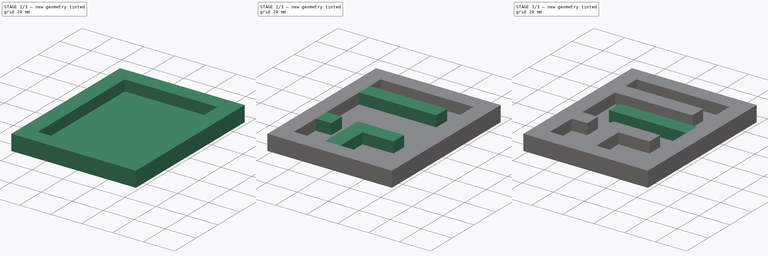
[diagram: build sequence overview — one tinted view per stage of 3, left to right]
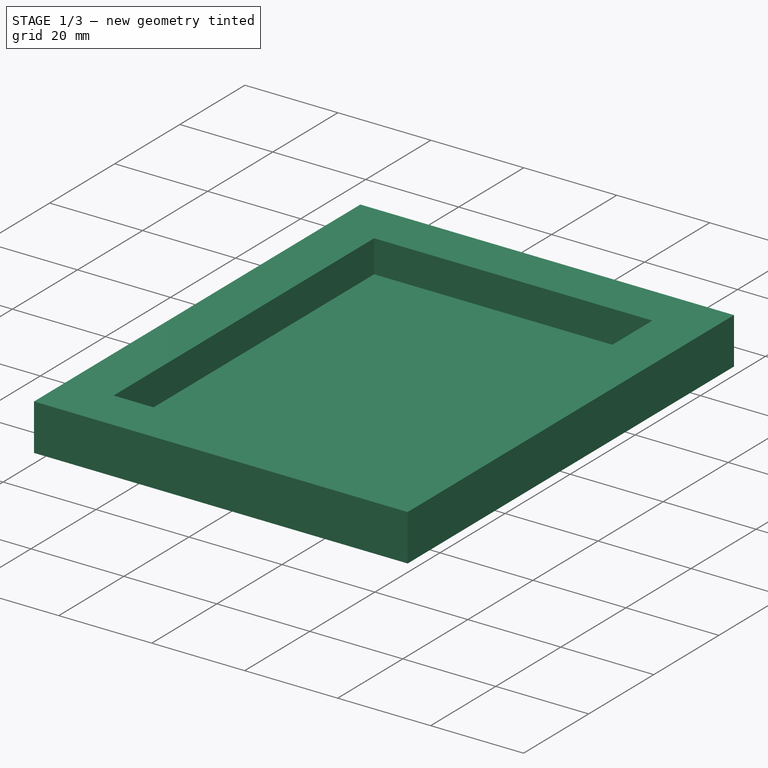
[diagram: stage 1 of 3 — iso view after this stage's code; geometry added in this stage tinted green]
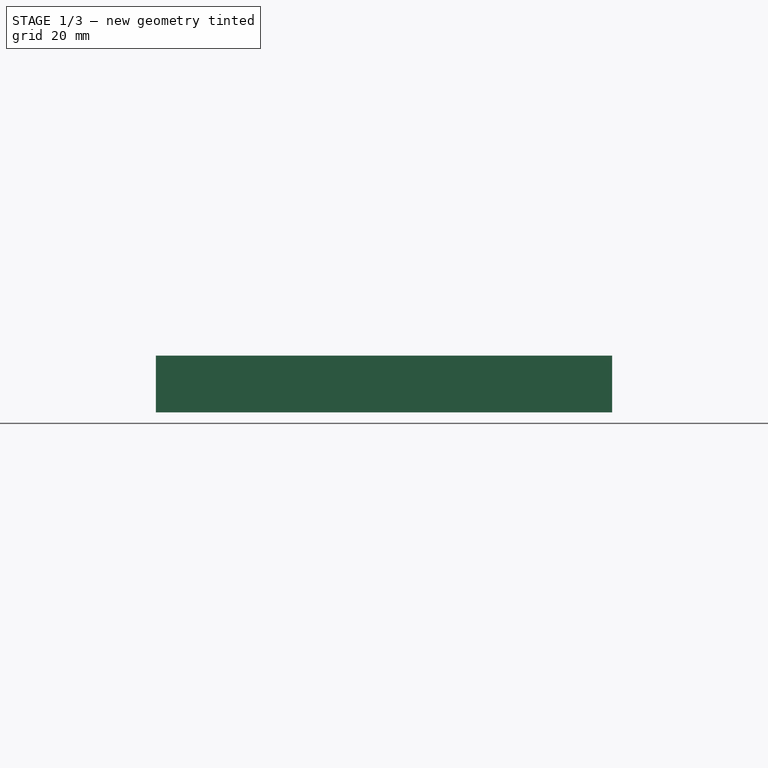
[diagram: stage 1 of 3 — front view after this stage's code; geometry added in this stage tinted green]
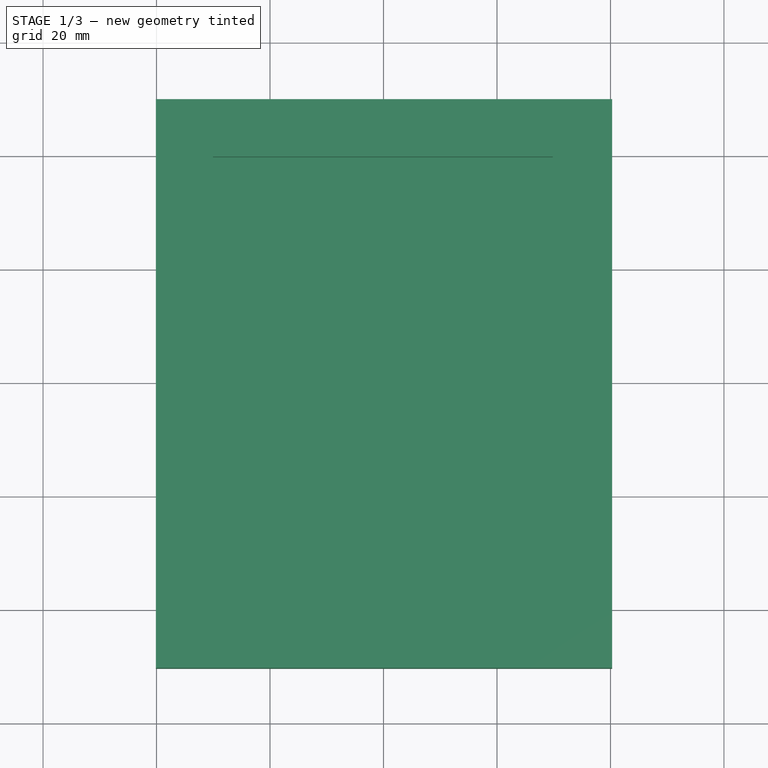
[diagram: stage 1 of 3 — top view after this stage's code; geometry added in this stage tinted green]
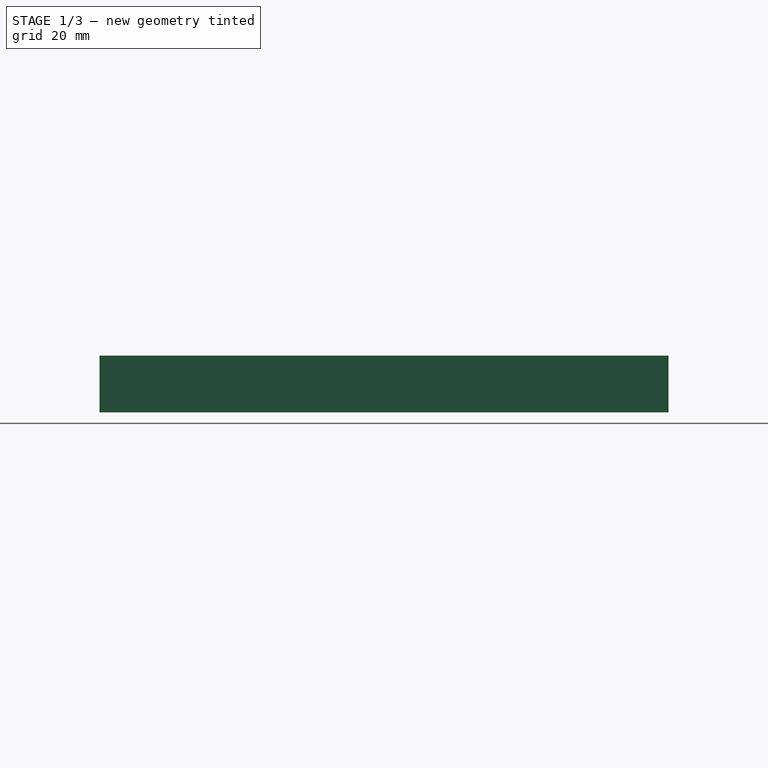
[diagram: stage 1 of 3 — right view after this stage's code; geometry added in this stage tinted green]
FCSTD DOCUMENT  (FreeCAD 0.21R33694 (Git))
Label: OJT1_T17R03_laberinto
License: All rights reserved
LicenseURL: http://en.wikipedia.org/wiki/All_rights_reserved
objects: Sketcher::SketchObject×7, PartDesign::Pad×5, PartDesign::Pocket×2, PartDesign::Body×1
note: 22 computed .brp shape members not serialized (recipe doc carries the construction recipe); baked Part::Feature solids carry a one-line shape summary decoded from their .brp

FEATURE [Sketcher::SketchObject] Sketch
  FullyConstrained = false
  MapMode = 5
  Support = -> [XY_Plane]
  sketch-geometry (4):
    g0: LineSegment StartX=-40.106 StartY=49.9385 StartZ=0 EndX=-40.106 EndY=-50.3284 EndZ=0
    g1: LineSegment StartX=-40.106 StartY=-50.3284 StartZ=0 EndX=40.283 EndY=-50.3284 EndZ=0
    g2: LineSegment StartX=40.283 StartY=-50.3284 StartZ=0 EndX=40.283 EndY=49.9385 EndZ=0
    g3: LineSegment StartX=40.283 StartY=49.9385 StartZ=0 EndX=-40.106 EndY=49.9385 EndZ=0
  constraints (8):
    c: Vertical(g0)
    c: Coincident(g0,g1)
    c: Horizontal(g1)
    c: Coincident(g1,g2)
    c: Vertical(g2)
    c: Coincident(g2,g3)
    c: Coincident(g3,g0)
    c: Horizontal(g3)
FEATURE [PartDesign::Pad] Pad
  Direction = (0,0,1)
  Length = 10
  Length2 = 10
  Profile = -> Sketch
  ReferenceAxis = -> Sketch [N_Axis]
  Type = 0
FEATURE [Sketcher::SketchObject] Sketch001
  FullyConstrained = false
  MapMode = 5
  Placement = pos=(0,0,10) rot=(0,0,1;0rad)
  Support = -> [Pad]
  sketch-geometry (4):
    g0: LineSegment StartX=-30.0434 StartY=39.8048 StartZ=0 EndX=-30.0434 EndY=-40.2386 EndZ=0
    g1: LineSegment StartX=-30.0434 StartY=-40.2386 StartZ=0 EndX=29.8265 EndY=-40.2386 EndZ=0
    g2: LineSegment StartX=29.8265 StartY=-40.2386 StartZ=0 EndX=29.8265 EndY=39.8048 EndZ=0
    g3: LineSegment StartX=29.8265 StartY=39.8048 StartZ=0 EndX=-30.0434 EndY=39.8048 EndZ=0
  constraints (8):
    c: Vertical(g0)
    c: Coincident(g0,g1)
    c: Horizontal(g1)
    c: Coincident(g1,g2)
    c: Vertical(g2)
    c: Coincident(g2,g3)
    c: Coincident(g3,g0)
    c: Horizontal(g3)
FEATURE [PartDesign::Pocket] Pocket
  BaseFeature = -> Pad
  Direction = (0,0,-1)
  Length = 7
  Length2 = 5
  Profile = -> Sketch001
  ReferenceAxis = -> Sketch001 [N_Axis]
  Type = 0
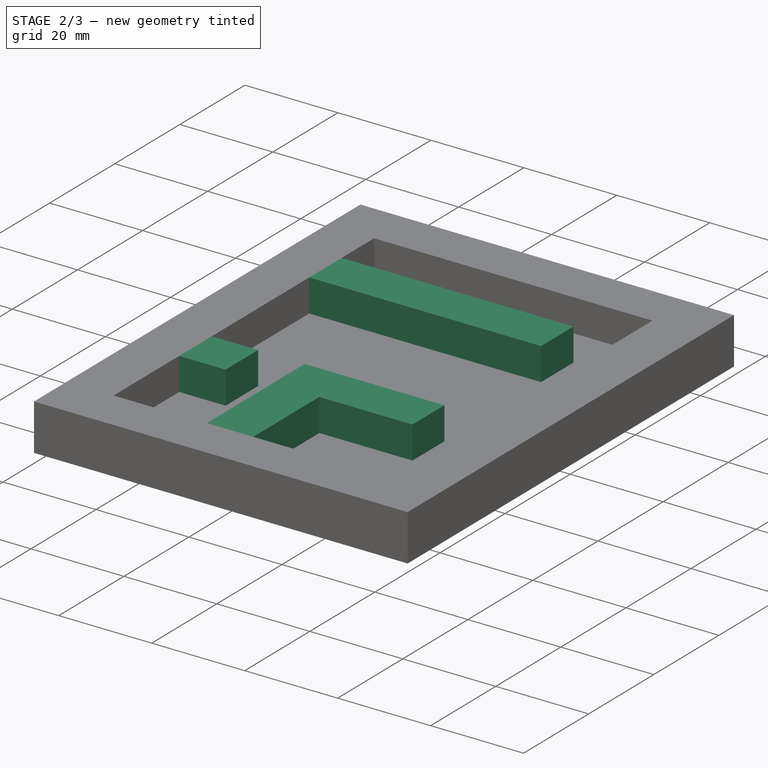
[diagram: stage 2 of 3 — iso view after this stage's code; geometry added in this stage tinted green]
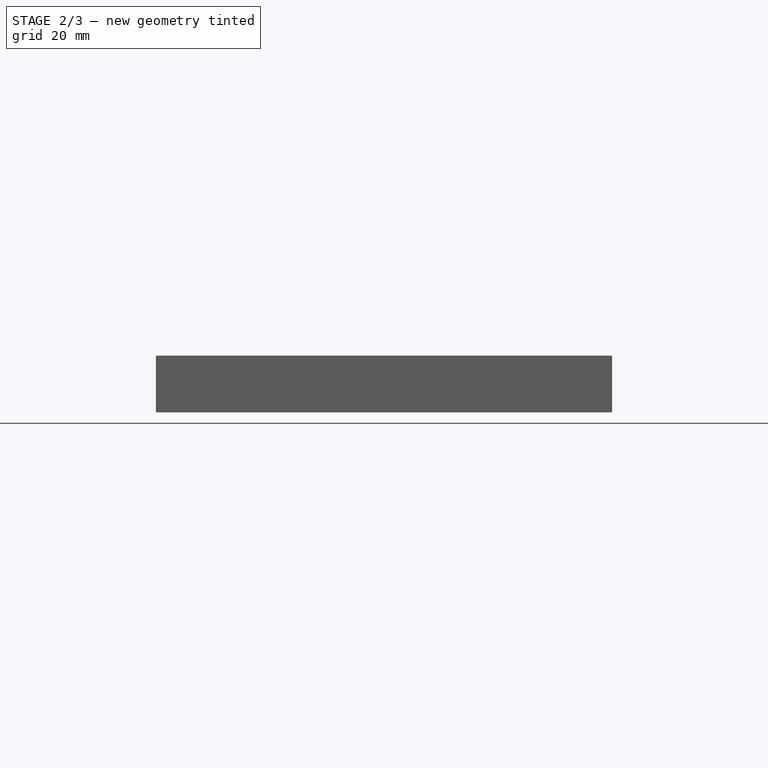
[diagram: stage 2 of 3 — front view after this stage's code; geometry added in this stage tinted green]
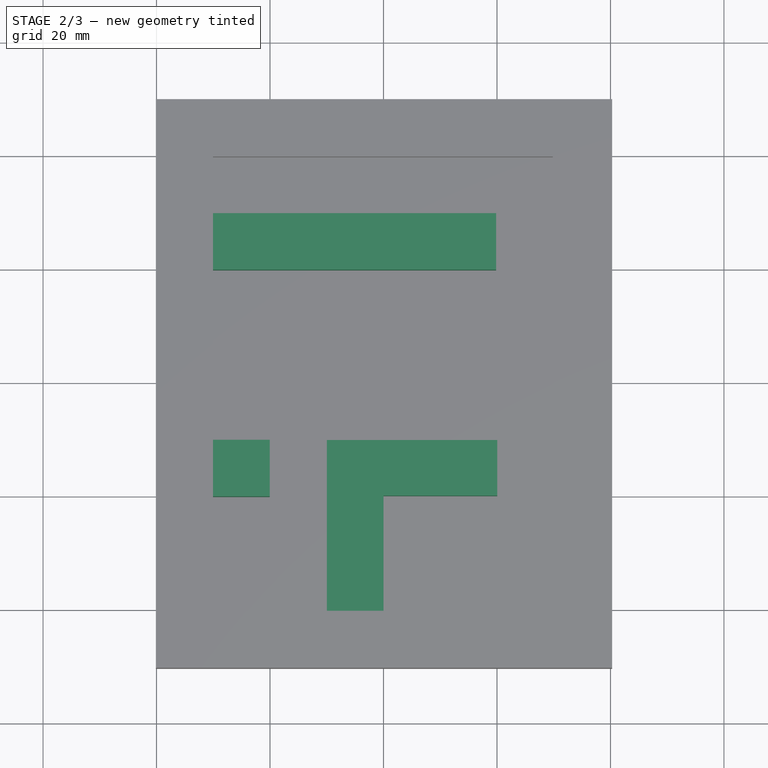
[diagram: stage 2 of 3 — top view after this stage's code; geometry added in this stage tinted green]
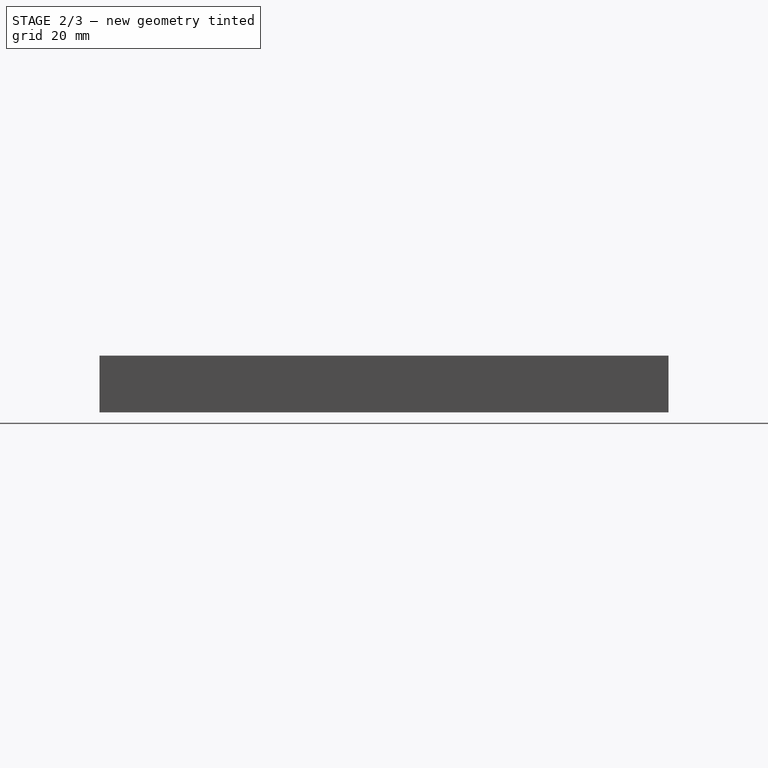
[diagram: stage 2 of 3 — right view after this stage's code; geometry added in this stage tinted green]
FEATURE [Sketcher::SketchObject] Sketch002
  FullyConstrained = false
  MapMode = 5
  Placement = pos=(0,0,10) rot=(0,0,1;0rad)
  Support = -> [Pocket]
  sketch-geometry (4):
    g0: LineSegment StartX=-30.0434 StartY=29.8265 StartZ=0 EndX=19.8482 EndY=29.8265 EndZ=0
    g1: LineSegment StartX=19.8482 StartY=29.8265 StartZ=0 EndX=19.8482 EndY=19.8482 EndZ=0
    g2: LineSegment StartX=19.8482 StartY=19.8482 StartZ=0 EndX=-30.2603 EndY=19.8482 EndZ=0
    g3: LineSegment StartX=-30.2603 StartY=19.8482 StartZ=0 EndX=-30.0434 EndY=29.8265 EndZ=0
  constraints (7):
    c: Horizontal(g0)
    c: Coincident(g0,g1)
    c: Vertical(g1)
    c: Coincident(g1,g2)
    c: Horizontal(g2)
    c: Coincident(g2,g3)
    c: Coincident(g3,g0)
FEATURE [PartDesign::Pad] Pad001
  AlongSketchNormal = false
  BaseFeature = -> Pocket
  Direction = (0,0,1)
  Length = 7
  Length2 = 10
  Profile = -> Sketch002
  ReferenceAxis = -> Sketch002 [N_Axis]
  Reversed = true
  Type = 0
FEATURE [Sketcher::SketchObject] Sketch003
  FullyConstrained = false
  MapMode = 5
  Placement = pos=(0,0,10) rot=(0,0,1;0rad)
  Support = -> [Pad001]
  sketch-geometry (4):
    g0: LineSegment StartX=-30.0506 StartY=-10.1011 StartZ=0 EndX=-30.0506 EndY=-20.0978 EndZ=0
    g1: LineSegment StartX=-30.0506 StartY=-20.0978 StartZ=0 EndX=-20.0539 EndY=-20.0978 EndZ=0
    g2: LineSegment StartX=-20.0539 StartY=-20.0978 StartZ=0 EndX=-20.0539 EndY=-10.1011 EndZ=0
    g3: LineSegment StartX=-20.0539 StartY=-10.1011 StartZ=0 EndX=-30.0506 EndY=-10.1011 EndZ=0
  constraints (7):
    c: Vertical(g0)
    c: Coincident(g0,g1)
    c: Coincident(g1,g2)
    c: Vertical(g2)
    c: Coincident(g2,g3)
    c: Coincident(g3,g0)
    c: Horizontal(g3)
FEATURE [PartDesign::Pad] Pad002
  BaseFeature = -> Pad001
  Direction = (0,0,1)
  Length = 7
  Length2 = 10
  Profile = -> Sketch003
  ReferenceAxis = -> Sketch003 [N_Axis]
  Reversed = true
  Type = 0
FEATURE [Sketcher::SketchObject] Sketch004
  FullyConstrained = false
  MapMode = 5
  Placement = pos=(0,0,10) rot=(0,0,1;0rad)
  Support = -> [Pad002]
  sketch-geometry (6):
    g0: LineSegment StartX=-9.98777 StartY=-10.147 StartZ=0 EndX=20.04 EndY=-10.147 EndZ=0
    g1: LineSegment StartX=20.04 StartY=-10.147 StartZ=0 EndX=20.04 EndY=-19.9468 EndZ=0
    g2: LineSegment StartX=20.04 StartY=-19.9468 StartZ=0 EndX=0 EndY=-19.9468 EndZ=0
    g3: LineSegment StartX=0 StartY=-19.9468 StartZ=0 EndX=0 EndY=-40.3004 EndZ=0
    g4: LineSegment StartX=0 StartY=-40.3004 StartZ=0 EndX=-9.98777 EndY=-40.3004 EndZ=0
    g5: LineSegment StartX=-9.98777 StartY=-40.3004 StartZ=0 EndX=-9.98777 EndY=-10.147 EndZ=0
  constraints (12):
    c: Horizontal(g0)
    c: Coincident(g0,g1)
    c: Vertical(g1)
    c: Coincident(g1,g2)
    c: PointOnObject(g2,g-2)
    c: Horizontal(g2)
    c: Coincident(g2,g3)
    c: Coincident(g3,g4)
    c: Horizontal(g4)
    c: Coincident(g4,g5)
    c: Coincident(g5,g0)
    c: Vertical(g5)
FEATURE [PartDesign::Pad] Pad003
  BaseFeature = -> Pad002
  Direction = (0,0,1)
  Length = 7
  Length2 = 10
  Profile = -> Sketch004
  ReferenceAxis = -> Sketch004 [N_Axis]
  Reversed = true
  Type = 0
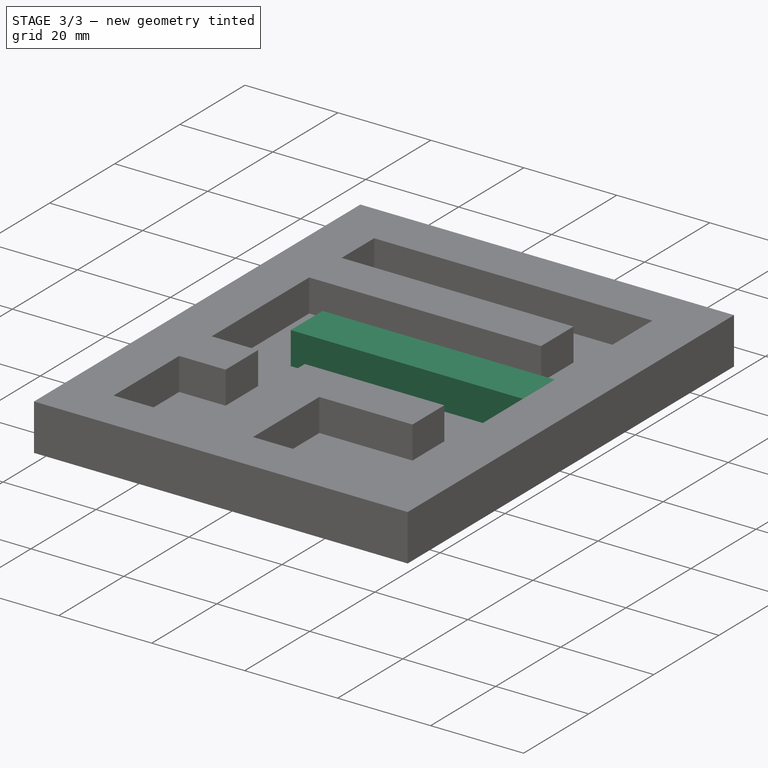
[diagram: stage 3 of 3 — iso view after this stage's code; geometry added in this stage tinted green]
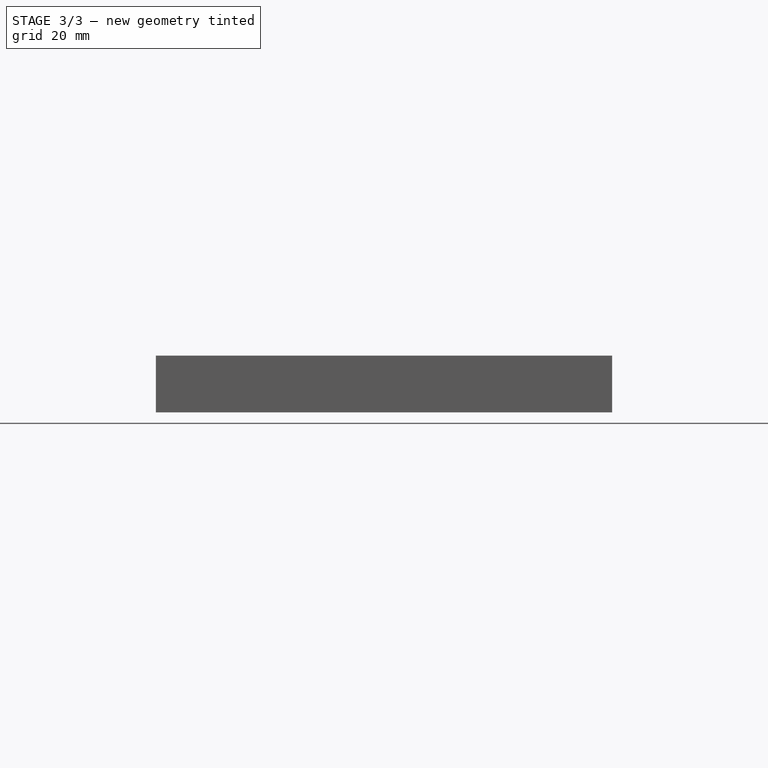
[diagram: stage 3 of 3 — front view after this stage's code; geometry added in this stage tinted green]
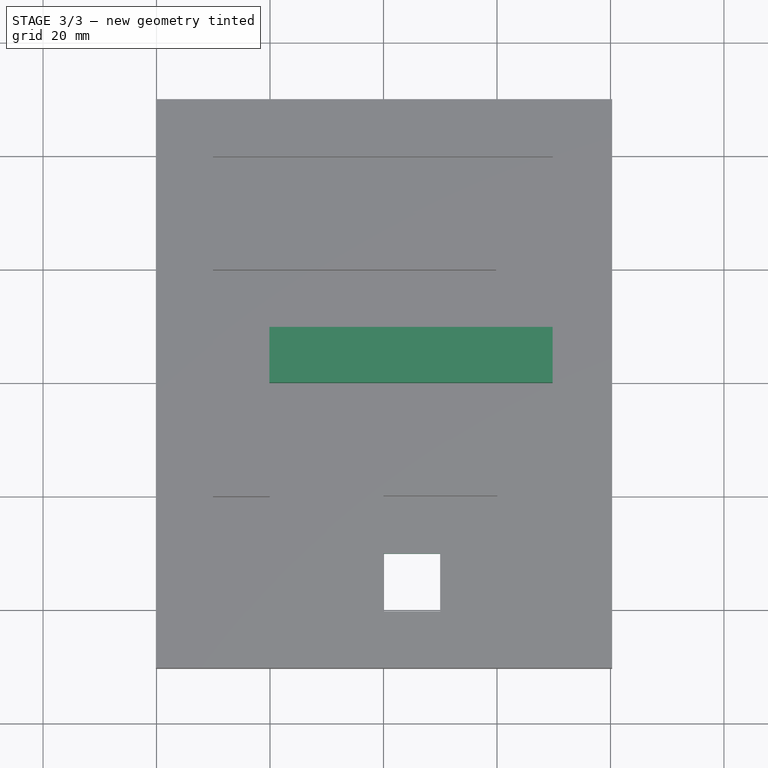
[diagram: stage 3 of 3 — top view after this stage's code; geometry added in this stage tinted green]
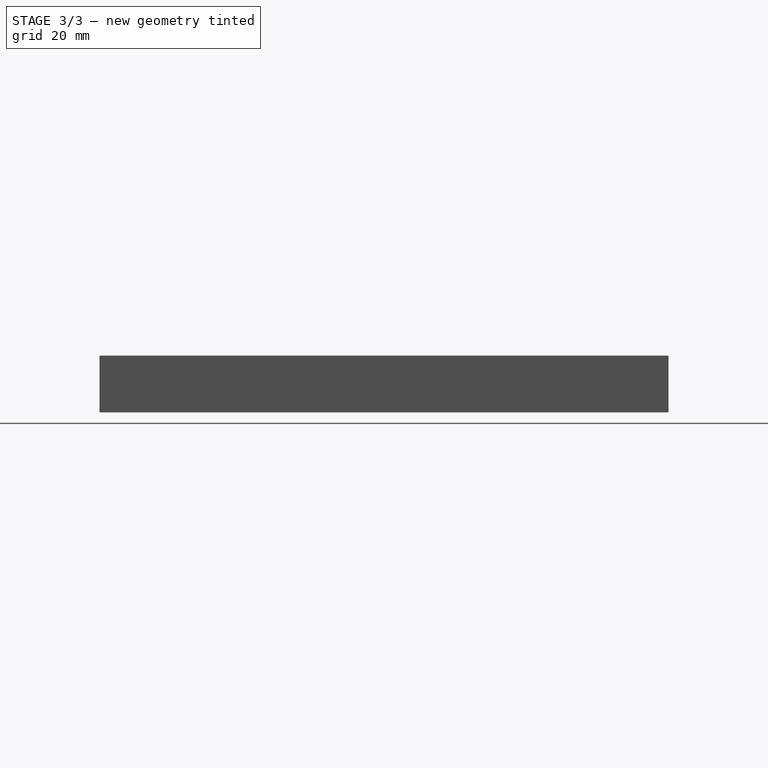
[diagram: stage 3 of 3 — right view after this stage's code; geometry added in this stage tinted green]
FEATURE [Sketcher::SketchObject] Sketch005
  FullyConstrained = false
  MapMode = 5
  Placement = pos=(0,0,10) rot=(0,0,1;0rad)
  Support = -> [Pad003]
  sketch-geometry (4):
    g0: LineSegment StartX=0 StartY=-30.0435 StartZ=0 EndX=9.98262 EndY=-30.0435 EndZ=0
    g1: LineSegment StartX=9.98262 StartY=-30.0435 StartZ=0 EndX=9.98262 EndY=-40.3292 EndZ=0
    g2: LineSegment StartX=9.98262 StartY=-40.3292 StartZ=0 EndX=0 EndY=-40.3292 EndZ=0
    g3: LineSegment StartX=0 StartY=-40.3292 StartZ=0 EndX=0 EndY=-30.0435 EndZ=0
  constraints (9):
    c: PointOnObject(g0,g-2)
    c: Horizontal(g0)
    c: Coincident(g0,g1)
    c: Vertical(g1)
    c: Coincident(g1,g2)
    c: PointOnObject(g2,g-2)
    c: Horizontal(g2)
    c: Coincident(g2,g3)
    c: Coincident(g3,g0)
FEATURE [PartDesign::Pocket] Pocket001
  BaseFeature = -> Pad003
  Direction = (0,0,-1)
  Length = 12
  Length2 = 5
  Profile = -> Sketch005
  ReferenceAxis = -> Sketch005 [N_Axis]
  Type = 0
FEATURE [Sketcher::SketchObject] Sketch007
  FullyConstrained = false
  MapMode = 5
  Placement = pos=(0,0,10) rot=(0,0,1;0rad)
  Support = -> [Pocket001]
  sketch-geometry (4):
    g0: LineSegment StartX=-20.1165 StartY=9.78149 StartZ=0 EndX=-20.1165 EndY=0 EndZ=0
    g1: LineSegment StartX=-20.1165 StartY=0 StartZ=0 EndX=29.7957 EndY=0 EndZ=0
    g2: LineSegment StartX=29.7957 StartY=0 StartZ=0 EndX=29.7957 EndY=9.78149 EndZ=0
    g3: LineSegment StartX=29.7957 StartY=9.78149 StartZ=0 EndX=-20.1165 EndY=9.78149 EndZ=0
  constraints (8):
    c: PointOnObject(g0,g-1)
    c: Vertical(g0)
    c: Coincident(g0,g1)
    c: Coincident(g1,g2)
    c: Vertical(g2)
    c: Coincident(g2,g3)
    c: Coincident(g3,g0)
    c: Horizontal(g3)
FEATURE [PartDesign::Pad] Pad004
  BaseFeature = -> Pocket001
  Direction = (0,0,1)
  Length = 7
  Length2 = 10
  Profile = -> Sketch007
  ReferenceAxis = -> Sketch007 [N_Axis]
  Reversed = true
  Type = 0
FEATURE [PartDesign::Body] Body
  Group = -> [Sketch,Pad,Sketch001,Pocket,Sketch002,Pad001,Sketch003,Pad002,Sketch004,Pad003,Sketch005,Pocket001,Sketch007,Pad004]
  Origin = -> Origin
  Tip = -> Pad004
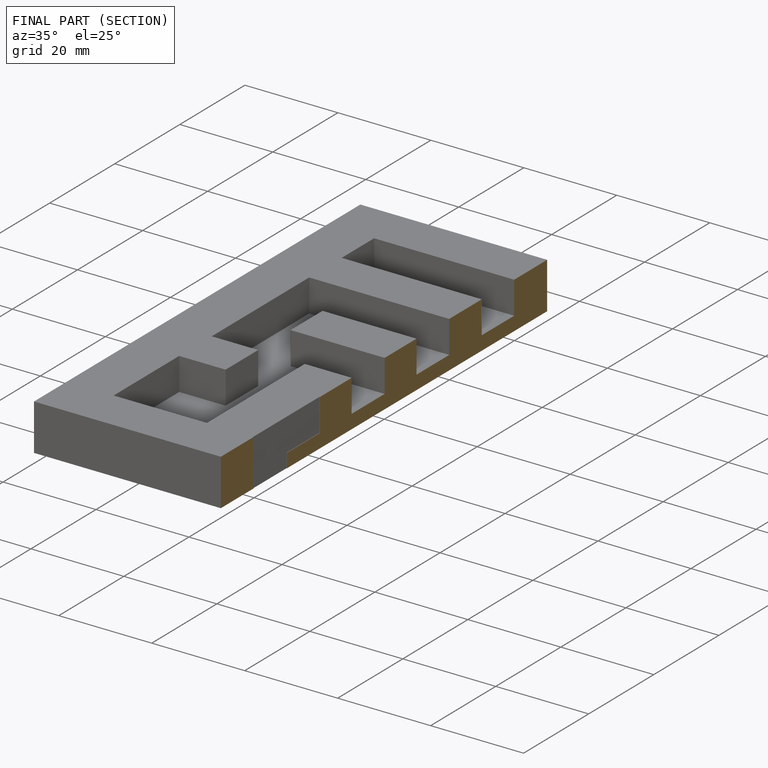
[diagram: finished part — half-section view (interior)]
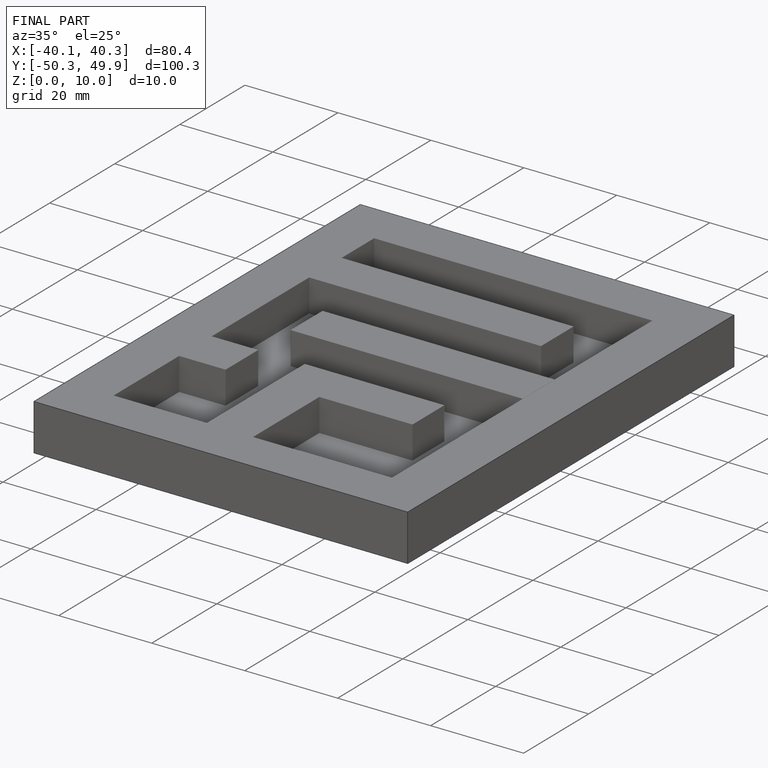
[diagram: finished part — iso view with bounding-box wireframe]
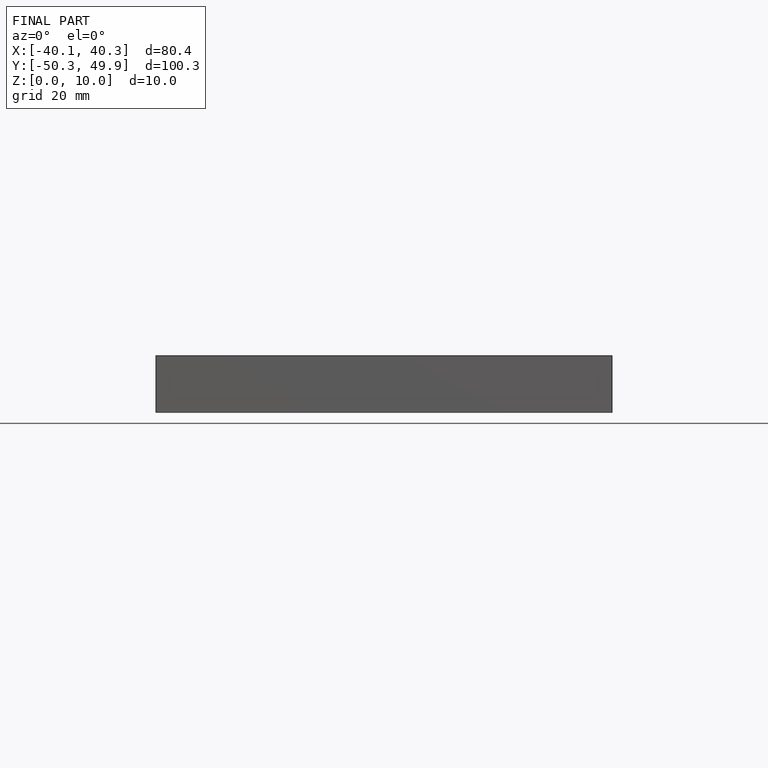
[diagram: finished part — front view with bounding-box wireframe]
